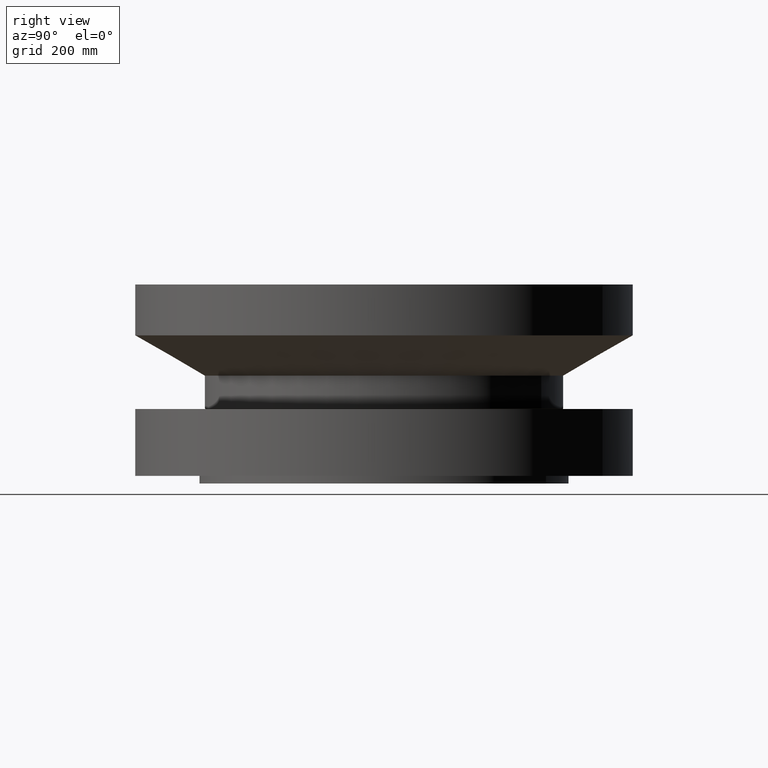
[diagram: clean part render]
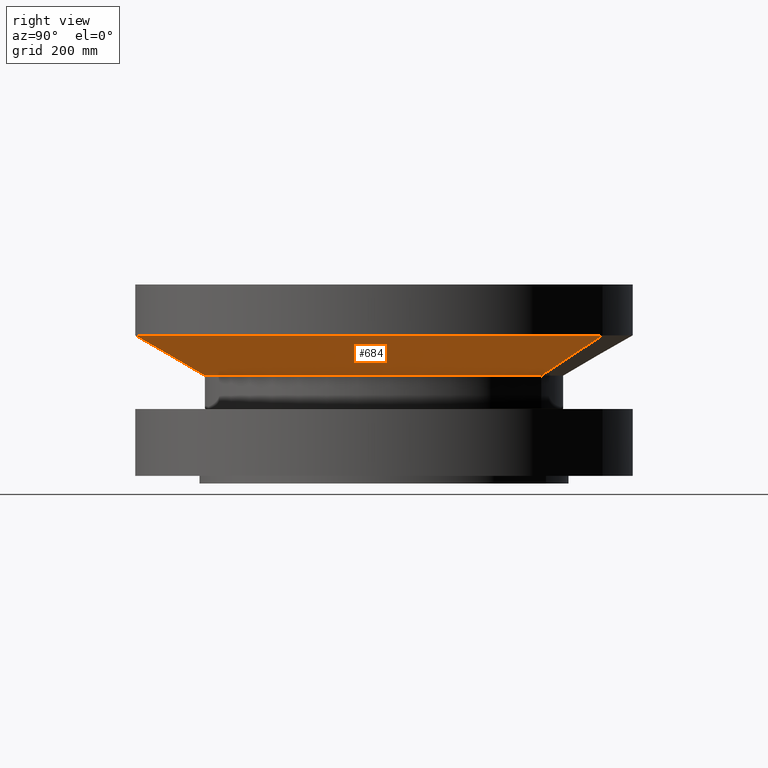
[diagram: same view with one face highlighted and labeled with its STEP entity id]
A machine part, right view. The second image highlights one B-rep face of the part: STEP entity #684.
In plain terms, the highlighted conical surface has half-angle 60 deg.
Its self-contained STEP definition (entity closure, byte-faithful):
#625=AXIS2_PLACEMENT_3D('Circle Axis2P3D',#623,#624,$) ;
#657=AXIS2_PLACEMENT_3D('Cone Axis2P3D',#654,#655,#656) ;
#668=AXIS2_PLACEMENT_3D('Circle Axis2P3D',#666,#667,$) ;
#620=CARTESIAN_POINT('Vertex',(7.07152669444,12.9443427879,8.25000000003)) ;
#623=CARTESIAN_POINT('Axis2P3D Location',(0.,0.,8.25000000003)) ;
#627=CARTESIAN_POINT('Vertex',(-7.07152669444,-12.9443427879,8.25000000003)) ;
#654=CARTESIAN_POINT('Axis2P3D Location',(0.,0.,8.25000000003)) ;
#659=CARTESIAN_POINT('Line Origine',(8.44987511793,15.4673926534,9.90988202396)) ;
#663=CARTESIAN_POINT('Vertex',(9.82822354143,17.9904425188,11.5697640479)) ;
#666=CARTESIAN_POINT('Axis2P3D Location',(0.,0.,11.5697640479)) ;
#670=CARTESIAN_POINT('Vertex',(-9.82822354143,-17.9904425188,11.5697640479)) ;
#673=CARTESIAN_POINT('Line Origine',(-8.44987511793,-15.4673926534,9.90988202396)) ;
#624=DIRECTION('Axis2P3D Direction',(0.,0.,-0.0393700787402)) ;
#655=DIRECTION('Axis2P3D Direction',(-0.,-0.,0.0393700787402)) ;
#656=DIRECTION('Axis2P3D XDirection',(0.0188750212049,0.0345504945626,0.)) ;
#660=DIRECTION('Vector Direction',(0.0163462478604,0.0299216060045,0.0196850393701)) ;
#667=DIRECTION('Axis2P3D Direction',(-0.,0.,0.0393700787402)) ;
#674=DIRECTION('Vector Direction',(-0.0163462478604,-0.0299216060045,0.0196850393701)) ;
#661=VECTOR('Line Direction',#660,0.0393700787402) ;
#675=VECTOR('Line Direction',#674,0.0393700787402) ;
#679=ORIENTED_EDGE('',*,*,#629,.F.) ;
#680=ORIENTED_EDGE('',*,*,#665,.T.) ;
#681=ORIENTED_EDGE('',*,*,#672,.T.) ;
#682=ORIENTED_EDGE('',*,*,#677,.F.) ;
#684=ADVANCED_FACE('PartBody',(#683),#658,.T.) ;
#626=CIRCLE('generated circle',#625,14.7500000001) ;
#669=CIRCLE('generated circle',#668,20.5000000001) ;
#658=CONICAL_SURFACE('Cone',#657,14.7500000001,1.0471975512) ;
#629=EDGE_CURVE('',#621,#628,#626,.T.) ;
#665=EDGE_CURVE('',#621,#664,#662,.T.) ;
#672=EDGE_CURVE('',#664,#671,#669,.F.) ;
#677=EDGE_CURVE('',#628,#671,#676,.T.) ;
#678=EDGE_LOOP('',(#679,#680,#681,#682)) ;
#683=FACE_OUTER_BOUND('',#678,.T.) ;
#662=LINE('Line',#659,#661) ;
#676=LINE('Line',#673,#675) ;
#621=VERTEX_POINT('',#620) ;
#628=VERTEX_POINT('',#627) ;
#664=VERTEX_POINT('',#663) ;
#671=VERTEX_POINT('',#670) ;